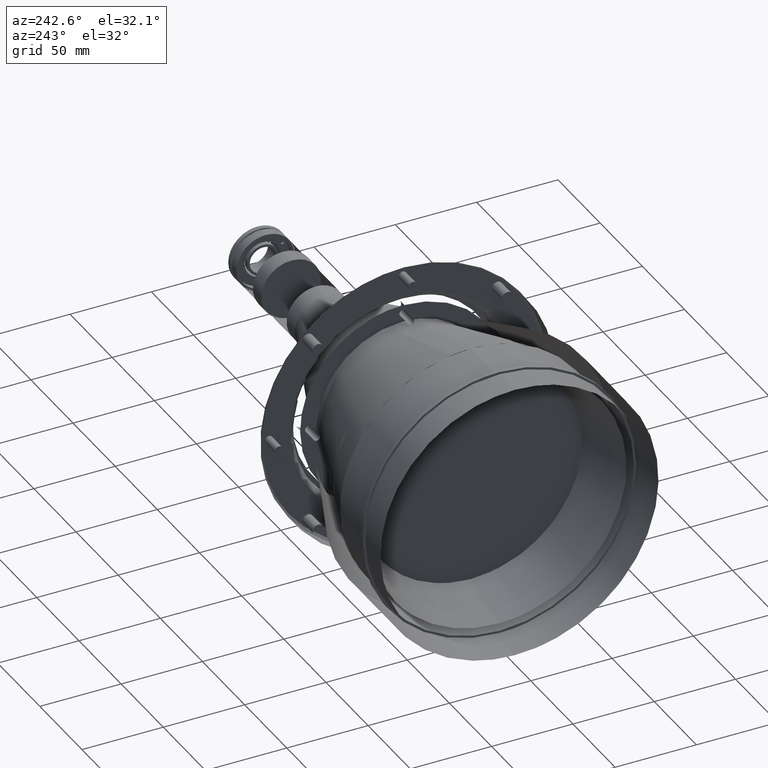
[diagram: clean part render]
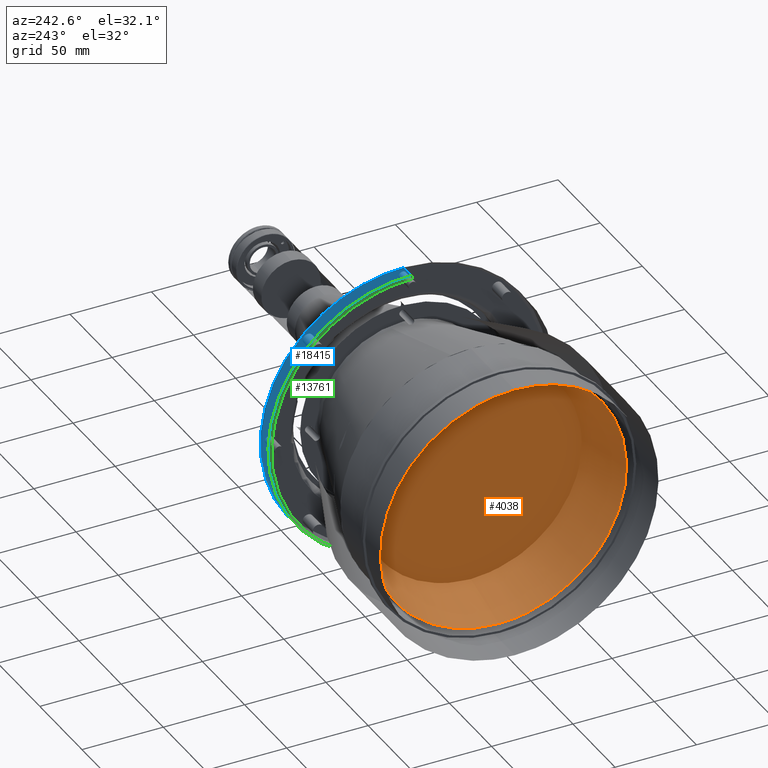
[diagram: same view with three faces highlighted in distinct colors, each labeled with its STEP entity id]
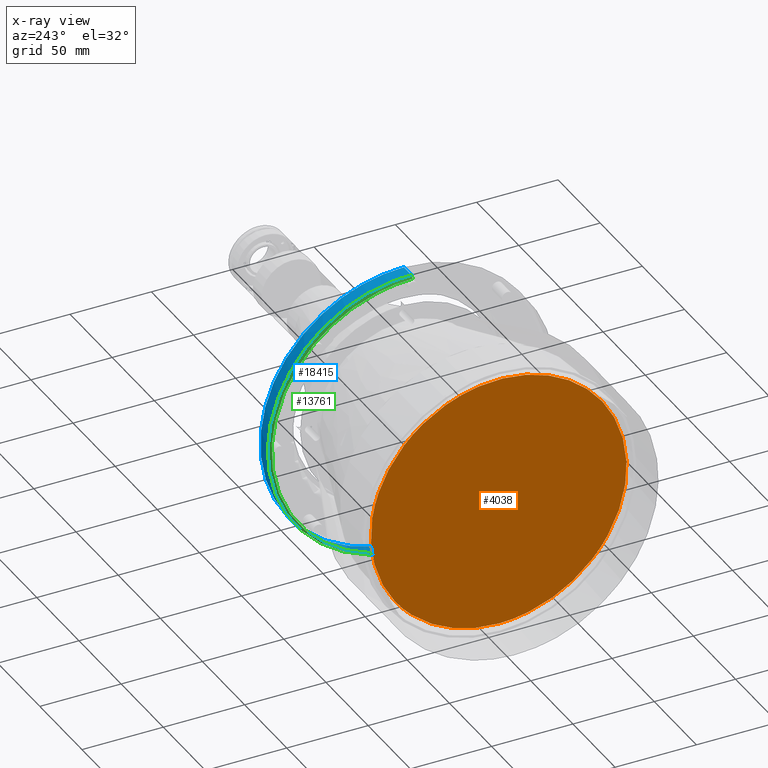
[diagram: x-ray of the same camera — body ghosted, the three highlighted faces saturated]
A machine part, auxiliary view with three faces highlighted in distinct colors.
The next image is the same camera in x-ray (body ghosted, the three faces saturated) — at least one of them is partly hidden behind the body in this view.
Their STEP definitions:

[orange] entity #4038 — the highlighted planar face has unit normal (1, -0, 0).
#194 = CARTESIAN_POINT ( 'NONE',  ( 38.05671031457399067, 6.376084525311458862, 10.19077467003822690 ) ) ;
#271 = B_SPLINE_CURVE_WITH_KNOTS ( 'NONE', 3,
 ( #10442, #1883, #2157, #13255, #3456, #17523, #9045, #4864, #14741, #14927, #10533, #2685, #1187, #6448, #16395, #12651, #14052, #17026, #15630, #12742, #15537, #5388, #6973, #14144, #2874, #12558, #6880, #13868, #4184, #5484, #15350, #1092, #8367, #9852, #12121, #1281, #8549, #14238, #13958, #2780, #7067, #8456, #5043, #11163, #9665, #9946, #17799, #2246, #3647, #11256, #10718, #4277, #18240, #9321, #2593, #16840, #6785, #16933, #18328, #5575, #9759, #15439, #15015, #7926, #1375, #12464, #18148, #18417, #11069, #16748, #5670, #11351, #3997, #8268, #4088 ),
 .UNSPECIFIED., .F., .F.,
 ( 4, 2, 2, 1, 2, 2, 1, 2, 2, 1, 2, 2, 1, 2, 2, 1, 2, 2, 1, 2, 2, 1, 2, 2, 1, 2, 2, 1, 2, 2, 2, 2, 1, 2, 2, 1, 2, 2, 1, 2, 2, 1, 2, 4 ),
 ( 0.000000000000000000, 0.02976128289108567054, 0.03720160361385711073, 0.04464192433662855786, 0.05952256578217144517, 0.06696288650494289230, 0.07440320722771430473, 0.08928384867325703245, 0.09672416939602843100, 0.1041644901187998296, 0.1190451315643426405, 0.1264854522871140807, 0.1339257730098855070, 0.1488064144554284707, 0.1636870559009714343, 0.1785676973465143980, 0.1860080180692859353, 0.1934483387920574171, 0.2083289802376005195, 0.2157693009603720291, 0.2232096216831435664, 0.2380902631286866411, 0.2455305838514581507, 0.2529709045742296603, 0.2678515460197726794, 0.2752918667425441335, 0.2827321874653155875, 0.2976128289108585512, 0.3124934703564014593, 0.3273741118019444230, 0.3422547532474873311, 0.3496950739702588407, 0.3571353946930302947, 0.3720160361385733139, 0.3794563568613448235, 0.3868966775841162775, 0.4017773190296592412, 0.4092176397524307507, 0.4166579604752022048, 0.4315386019207451129, 0.4389789226435166225, 0.4464192433662880766, 0.4612998848118310402, 0.4761805262573740039 ),
 .UNSPECIFIED. ) ;
#464 = CARTESIAN_POINT ( 'NONE',  ( 38.05671031457398357, -66.87561608679088465, -26.78701782049433433 ) ) ;
#549 = CARTESIAN_POINT ( 'NONE',  ( 38.05671031457399778, -44.70217141677154160, -3.527501844112061136 ) ) ;
#645 = CARTESIAN_POINT ( 'NONE',  ( 38.05671031457398357, -53.84246253192723941, -125.5366221208920336 ) ) ;
#740 = CARTESIAN_POINT ( 'NONE',  ( 38.05671031457397646, -71.72742678579534470, -100.4569420329792422 ) ) ;
#829 = CARTESIAN_POINT ( 'NONE',  ( 38.05671031457399067, -46.89464270951236813, -5.098048380680411995 ) ) ;
#1047 = CARTESIAN_POINT ( 'NONE',  ( 38.05671031457399778, 0.000000000000000000, -146.8487528718239901 ) ) ;
#1092 = CARTESIAN_POINT ( 'NONE',  ( 38.05671031457401909, 75.68372241338141748, -89.77822345478968202 ) ) ;
#1187 = CARTESIAN_POINT ( 'NONE',  ( 38.05671031457400488, 39.75026936329564364, -136.1055009067310380 ) ) ;
#1200 = CARTESIAN_POINT ( 'NONE',  ( 38.05671031457399778, 0.000000000000000000, -146.8487528718239901 ) ) ;
#1281 = CARTESIAN_POINT ( 'NONE',  ( 38.05671031457401909, 77.92636991577541039, -78.97406470964327241 ) ) ;
#1375 = CARTESIAN_POINT ( 'NONE',  ( 38.05671031457401909, 41.42006094552719020, -1.380688524144313867 ) ) ;
#1749 = EDGE_CURVE ( 'NONE', #13409, #3978, #9203, .T. ) ;
#1883 = CARTESIAN_POINT ( 'NONE',  ( 38.05671031457400488, 4.916527840896818269, -146.8487528720000341 ) ) ;
#1963 = CARTESIAN_POINT ( 'NONE',  ( 38.05671031457399778, -37.53446332763071780, -137.4043306474347617 ) ) ;
#2053 = CARTESIAN_POINT ( 'NONE',  ( 38.05671031457399778, -36.66643379590394147, 1.421971415113263193 ) ) ;
#2147 = CARTESIAN_POINT ( 'NONE',  ( 38.05671031457397646, -77.07840901102601094, -83.80246185347523635 ) ) ;
#2157 = CARTESIAN_POINT ( 'NONE',  ( 38.05671031457401199, 9.788222218176917622, -146.3920013364085548 ) ) ;
#2236 = CARTESIAN_POINT ( 'NONE',  ( 38.05671031457396936, -61.45554576600308394, -19.04915952185774941 ) ) ;
#2246 = CARTESIAN_POINT ( 'NONE',  ( 38.05671031457401909, 73.58253753424232002, -40.40882538043845074 ) ) ;
#2549 = FACE_OUTER_BOUND ( 'NONE', #3040, .T. ) ;
#2593 = CARTESIAN_POINT ( 'NONE',  ( 38.05671031457401909, 62.97722328985243223, -21.13338555179635136 ) ) ;
#2685 = CARTESIAN_POINT ( 'NONE',  ( 38.05671031457398357, 36.55432843123357145, -137.9113011771030415 ) ) ;
#2780 = CARTESIAN_POINT ( 'NONE',  ( 38.05671031457401199, 78.63474629083620471, -67.97904042699587990 ) ) ;
#2874 = CARTESIAN_POINT ( 'NONE',  ( 38.05671031457401199, 66.08203489139548026, -110.8981845612031378 ) ) ;
#3040 = EDGE_LOOP ( 'NONE', ( #3644, #14266 ) ) ;
#3183 = CARTESIAN_POINT ( 'NONE',  ( 38.05671031457399778, -15.09690114236384240, 8.951187844582982223 ) ) ;
#3358 = CARTESIAN_POINT ( 'NONE',  ( 38.05671031457398357, -65.92607116230033171, -111.0898646095812694 ) ) ;
#3448 = CARTESIAN_POINT ( 'NONE',  ( 38.05671031457399067, -76.26405228424427207, -49.04826227293060725 ) ) ;
#3456 = CARTESIAN_POINT ( 'NONE',  ( 38.05671031457401199, 17.02378784041215454, -144.9935811832500860 ) ) ;
#3533 = EDGE_CURVE ( 'NONE', #3978, #13409, #271, .T. ) ;
#3541 = CARTESIAN_POINT ( 'NONE',  ( 38.05671031457398357, -78.51959019937328321, -73.12674455888888758 ) ) ;
#3635 = CARTESIAN_POINT ( 'NONE',  ( 38.05671031457399067, -56.03466016865046839, -13.05146247734951537 ) ) ;
#3644 = ORIENTED_EDGE ( 'NONE', *, *, #3533, .T. ) ;
#3647 = CARTESIAN_POINT ( 'NONE',  ( 38.05671031457401909, 71.70110261549422148, -35.86603427780241304 ) ) ;
#3734 = CARTESIAN_POINT ( 'NONE',  ( 38.05671031457398357, -71.87527263645489484, -36.32064329710928519 ) ) ;
#3978 = VERTEX_POINT ( 'NONE', #1047 ) ;
#3997 = CARTESIAN_POINT ( 'NONE',  ( 38.05671031457401909, 16.55780786059200693, 8.678278479446325022 ) ) ;
#4038 = ADVANCED_FACE ( 'NONE', ( #2549 ), #4044, .T. ) ;
#4044 = PLANE ( 'NONE',  #7802 ) ;
#4088 = CARTESIAN_POINT ( 'NONE',  ( 38.05671031457399778, 11.71905027885016004, 9.525284016133939602 ) ) ;
#4184 = CARTESIAN_POINT ( 'NONE',  ( 38.05671031457401199, 72.83510602422902025, -97.86317660481512348 ) ) ;
#4277 = CARTESIAN_POINT ( 'NONE',  ( 38.05671031457401199, 67.12897999313743469, -27.21399705340662933 ) ) ;
#4765 = CARTESIAN_POINT ( 'NONE',  ( 38.05671031457399067, -76.87633949925070453, -51.67513521243261465 ) ) ;
#4854 = CARTESIAN_POINT ( 'NONE',  ( 38.05671031457399778, -40.17326951209265928, -0.5810521141859347205 ) ) ;
#4864 = CARTESIAN_POINT ( 'NONE',  ( 38.05671031457400488, 26.43663849767017382, -142.3121472042883511 ) ) ;
#4943 = CARTESIAN_POINT ( 'NONE',  ( 38.05671031457398357, -75.24601029676011876, -45.13831364069653773 ) ) ;
#5032 = CARTESIAN_POINT ( 'NONE',  ( 38.05671031457399067, -29.29185173212004756, 4.754860463382906133 ) ) ;
#5043 = CARTESIAN_POINT ( 'NONE',  ( 38.05671031457401909, 77.83011824985213423, -56.99601623189805366 ) ) ;
#5127 = CARTESIAN_POINT ( 'NONE',  ( 38.05671031457397646, -73.29298297572074716, -96.71802628340445551 ) ) ;
#5388 = CARTESIAN_POINT ( 'NONE',  ( 38.05671031457400488, 59.48905360007999832, -119.7371423925940377 ) ) ;
#5484 = CARTESIAN_POINT ( 'NONE',  ( 38.05671031457401199, 73.28957110382296491, -96.72136178031674092 ) ) ;
#5575 = CARTESIAN_POINT ( 'NONE',  ( 38.05671031457401909, 53.12469848195424049, -10.24622313552383268 ) ) ;
#5670 = CARTESIAN_POINT ( 'NONE',  ( 38.05671031457401909, 24.83016480877881804, 6.450125369217453830 ) ) ;
#5897 = CARTESIAN_POINT ( 'NONE',  ( 38.05671031457399778, 2.338099930417981476, 10.37945372494602481 ) ) ;
#5988 = CARTESIAN_POINT ( 'NONE',  ( 38.05671031457399778, 11.71905027885016004, 9.525284016133939602 ) ) ;
#6076 = CARTESIAN_POINT ( 'NONE',  ( 38.05671031457399778, -13.76687304012811097, 9.199642144594054827 ) ) ;
#6163 = CARTESIAN_POINT ( 'NONE',  ( 38.05671031457399778, -30.54388108301824900, 4.239738514417793702 ) ) ;
#6252 = CARTESIAN_POINT ( 'NONE',  ( 38.05671031457400488, -33.92057187863734669, -139.2072266835781420 ) ) ;
#6347 = CARTESIAN_POINT ( 'NONE',  ( 38.05671031457399067, -22.61435096974433279, -143.6118960994778320 ) ) ;
#6439 = CARTESIAN_POINT ( 'NONE',  ( 38.05671031457398357, -70.00832826489842375, -104.1151409645158594 ) ) ;
#6448 = CARTESIAN_POINT ( 'NONE',  ( 38.05671031457401909, 42.86517839783904549, -134.1478589493891036 ) ) ;
#6526 = CARTESIAN_POINT ( 'NONE',  ( 38.05671031457398357, -55.77844643650935552, -123.6538344810680172 ) ) ;
#6785 = CARTESIAN_POINT ( 'NONE',  ( 38.05671031457401909, 58.33466498240333920, -15.44873522400510346 ) ) ;
#6833 = DIRECTION ( 'NONE',  ( 1.000000000000000000, -2.035262795730819678E-16, 2.786056550776199888E-32 ) ) ;
#6880 = CARTESIAN_POINT ( 'NONE',  ( 38.05671031457401909, 70.35633602721718205, -103.4739242110976107 ) ) ;
#6973 = CARTESIAN_POINT ( 'NONE',  ( 38.05671031457400488, 61.80388307873852938, -116.8894908222988960 ) ) ;
#7067 = CARTESIAN_POINT ( 'NONE',  ( 38.05671031457401909, 78.56639179297700082, -64.29854869995493516 ) ) ;
#7292 = CARTESIAN_POINT ( 'NONE',  ( 38.05671031457399778, 9.054373412062425075, 9.926819279266585028 ) ) ;
#7553 = CARTESIAN_POINT ( 'NONE',  ( 38.05671031457399778, -43.58204880972693473, -2.767818743318413155 ) ) ;
#7638 = CARTESIAN_POINT ( 'NONE',  ( 38.05671031457399067, -33.01251345188338604, 3.149380294662648350 ) ) ;
#7732 = CARTESIAN_POINT ( 'NONE',  ( 38.05671031457399778, -58.79934955808261066, -16.00684351903584712 ) ) ;
#7802 = AXIS2_PLACEMENT_3D ( 'NONE', #9714, #6833, #10926 ) ;
#7829 = CARTESIAN_POINT ( 'NONE',  ( 38.05671031457398357, -78.63556903991303670, -67.72805215109974597 ) ) ;
#7917 = CARTESIAN_POINT ( 'NONE',  ( 38.05671031457399067, -56.97491616675443282, -14.02271015798575071 ) ) ;
#7926 = CARTESIAN_POINT ( 'NONE',  ( 38.05671031457399778, 43.48549900229272680, -2.706024210825458187 ) ) ;
#8268 = CARTESIAN_POINT ( 'NONE',  ( 38.05671031457400488, 14.14121759625210650, 9.159141166681505908 ) ) ;
#8367 = CARTESIAN_POINT ( 'NONE',  ( 38.05671031457401909, 76.55153123091109535, -86.20629609394629256 ) ) ;
#8456 = CARTESIAN_POINT ( 'NONE',  ( 38.05671031457401199, 78.32673313871595155, -60.63475725463543142 ) ) ;
#8549 = CARTESIAN_POINT ( 'NONE',  ( 38.05671031457401199, 78.37181173435568837, -75.33053543977335664 ) ) ;
#9034 = CARTESIAN_POINT ( 'NONE',  ( 38.05671031457399067, -47.70366460303858958, -130.7829342896594369 ) ) ;
#9045 = CARTESIAN_POINT ( 'NONE',  ( 38.05671031457401909, 22.95978730304792848, -143.4927133663095731 ) ) ;
#9126 = CARTESIAN_POINT ( 'NONE',  ( 38.05671031457398357, -78.19939772986202797, -77.15153695879597251 ) ) ;
#9203 = B_SPLINE_CURVE_WITH_KNOTS ( 'NONE', 3,
 ( #5988, #7292, #194, #5897, #10176, #10346, #10264, #15935, #6076, #3183, #14553, #11748, #16018, #5032, #6163, #7638, #2053, #4854, #7553, #549, #829, #9404, #14823, #3635, #7917, #7732, #2236, #9220, #464, #16293, #13244, #16386, #3734, #11833, #17514, #4943, #3448, #4765, #15095, #10617, #13424, #17792, #7829, #14917, #3541, #9126, #17884, #2147, #13516, #10434, #15008, #5127, #13607, #740, #6439, #12112, #16111, #3358, #10709, #16200, #9313, #13335, #6526, #645, #12205, #9034, #10799, #16477, #14732, #1963, #6252, #11925, #17606, #10521, #6347, #12018, #17703, #18251, #11267, #16664, #9493, #1200 ),
 .UNSPECIFIED., .F., .F.,
 ( 4, 2, 2, 1, 2, 2, 1, 2, 2, 1, 2, 2, 1, 2, 2, 1, 2, 2, 2, 2, 1, 2, 2, 1, 2, 2, 1, 2, 2, 1, 2, 2, 2, 2, 1, 2, 2, 1, 2, 2, 1, 2, 2, 1, 2, 2, 1, 4 ),
 ( 0.4761805262573740039, 0.4925498848118309847, 0.5007345640890594751, 0.5089192433662879100, 0.5252886019207448909, 0.5334732811979734368, 0.5416579604752018717, 0.5580273190296589636, 0.5662119983068873985, 0.5743966775841158334, 0.5907660361385729253, 0.5989507154158013602, 0.6071353946930299061, 0.6235047532474868870, 0.6316894325247153219, 0.6398741118019438678, 0.6562434703564008487, 0.6726128289108578295, 0.6807975081880862644, 0.6889821874653148104, 0.7053515460197717912, 0.7135362252970003372, 0.7217209045742287721, 0.7380902631286858639, 0.7462749424059142989, 0.7544596216831427338, 0.7708289802375998256, 0.7790136595148283716, 0.7871983387920569175, 0.8035676973465138984, 0.8117523766237424443, 0.8199370559009708792, 0.8363064144554279711, 0.8444910937326564060, 0.8526757730098849519, 0.8690451315643421548, 0.8772298108415707008, 0.8854144901187992467, 0.9017838486732564496, 0.9099685279504849955, 0.9181532072277136525, 0.9345225657821709664, 0.9427072450593996233, 0.9508919243366282803, 0.9672612828910855942, 0.9754459621683142512, 0.9836306414455426861, 1.000000000000000000 ),
 .UNSPECIFIED. ) ;
#9220 = CARTESIAN_POINT ( 'NONE',  ( 38.05671031457397646, -63.87038033670842907, -22.28982340841998422 ) ) ;
#9313 = CARTESIAN_POINT ( 'NONE',  ( 38.05671031457398357, -59.47543663570463224, -119.7212755075027104 ) ) ;
#9321 = CARTESIAN_POINT ( 'NONE',  ( 38.05671031457401199, 64.41378659677808116, -23.11914411118344148 ) ) ;
#9404 = CARTESIAN_POINT ( 'NONE',  ( 38.05671031457398357, -50.11734025242395774, -7.534409520270346938 ) ) ;
#9493 = CARTESIAN_POINT ( 'NONE',  ( 38.05671031457399067, -2.704462623055752246, -146.8487528719999773 ) ) ;
#9665 = CARTESIAN_POINT ( 'NONE',  ( 38.05671031457401909, 77.21897900880314580, -53.36678669948003773 ) ) ;
#9714 = CARTESIAN_POINT ( 'NONE',  ( 38.05671031457399778, 2.182586508514310088E-12, -75.37093559927269837 ) ) ;
#9759 = CARTESIAN_POINT ( 'NONE',  ( 38.05671031457401199, 50.39741777776100662, -7.785107709744822024 ) ) ;
#9852 = CARTESIAN_POINT ( 'NONE',  ( 38.05671031457402620, 77.07519263638933182, -83.80828482037074423 ) ) ;
#9946 = CARTESIAN_POINT ( 'NONE',  ( 38.05671031457400488, 76.46683334202626270, -49.76028517816337882 ) ) ;
#10176 = CARTESIAN_POINT ( 'NONE',  ( 38.05671031457399067, 0.9874648502324039345, 10.40780510535132386 ) ) ;
#10264 = CARTESIAN_POINT ( 'NONE',  ( 38.05671031457401199, -5.759467590481850863, 10.27320223436879587 ) ) ;
#10346 = CARTESIAN_POINT ( 'NONE',  ( 38.05671031457401199, -1.715349647835610947, 10.39542016807629743 ) ) ;
#10434 = CARTESIAN_POINT ( 'NONE',  ( 38.05671031457399067, -75.86306440271476959, -89.06023311745828153 ) ) ;
#10442 = CARTESIAN_POINT ( 'NONE',  ( 38.05671031457399778, 0.000000000000000000, -146.8487528718239901 ) ) ;
#10521 = CARTESIAN_POINT ( 'NONE',  ( 38.05671031457399067, -26.43049243160304940, -142.2860806473529749 ) ) ;
#10533 = CARTESIAN_POINT ( 'NONE',  ( 38.05671031457401199, 33.23683965289356479, -139.4893389170203193 ) ) ;
#10617 = CARTESIAN_POINT ( 'NONE',  ( 38.05671031457399067, -77.86580887978617227, -56.98634003731132225 ) ) ;
#10709 = CARTESIAN_POINT ( 'NONE',  ( 38.05671031457397646, -64.41414385769385831, -113.3301624749999093 ) ) ;
#10718 = CARTESIAN_POINT ( 'NONE',  ( 38.05671031457401199, 68.37326688644652961, -29.32305376294559451 ) ) ;
#10799 = CARTESIAN_POINT ( 'NONE',  ( 38.05671031457399778, -44.40267328799469482, -133.1246548485498238 ) ) ;
#10926 = DIRECTION ( 'NONE',  ( -2.035262795730819678E-16, -1.000000000000000000, 0.000000000000000000 ) ) ;
#11069 = CARTESIAN_POINT ( 'NONE',  ( 38.05671031457400488, 30.54944017321951222, 4.235207147251707660 ) ) ;
#11163 = CARTESIAN_POINT ( 'NONE',  ( 38.05671031457401909, 77.44194027180894579, -54.57575564398027979 ) ) ;
#11256 = CARTESIAN_POINT ( 'NONE',  ( 38.05671031457401199, 70.65938509027323278, -33.64920971172026753 ) ) ;
#11267 = CARTESIAN_POINT ( 'NONE',  ( 38.05671031457400488, -10.74591643880151537, -146.1233164662070578 ) ) ;
#11351 = CARTESIAN_POINT ( 'NONE',  ( 38.05671031457399778, 21.31348044963348443, 7.499143268266834639 ) ) ;
#11748 = CARTESIAN_POINT ( 'NONE',  ( 38.05671031457399067, -21.66967502543441881, 7.442504084687838528 ) ) ;
#11833 = CARTESIAN_POINT ( 'NONE',  ( 38.05671031457399067, -72.41303700199688365, -37.56130259237985314 ) ) ;
#11925 = CARTESIAN_POINT ( 'NONE',  ( 38.05671031457399067, -30.20825927470711747, -140.8265745785229512 ) ) ;
#12018 = CARTESIAN_POINT ( 'NONE',  ( 38.05671031457399778, -18.70712717697344019, -144.6388780566256855 ) ) ;
#12112 = CARTESIAN_POINT ( 'NONE',  ( 38.05671031457398357, -68.73972386227305265, -106.4886503602495083 ) ) ;
#12121 = CARTESIAN_POINT ( 'NONE',  ( 38.05671031457401199, 77.30966860694340426, -82.60049744451848142 ) ) ;
#12205 = CARTESIAN_POINT ( 'NONE',  ( 38.05671031457398357, -50.87231743202560352, -128.2803934304872087 ) ) ;
#12464 = CARTESIAN_POINT ( 'NONE',  ( 38.05671031457400488, 38.28126100364460171, 0.5314588159602521289 ) ) ;
#12558 = CARTESIAN_POINT ( 'NONE',  ( 38.05671031457400488, 68.61117981429146084, -106.7021960375514453 ) ) ;
#12651 = CARTESIAN_POINT ( 'NONE',  ( 38.05671031457401199, 45.90622551727862799, -132.0679096595923738 ) ) ;
#12742 = CARTESIAN_POINT ( 'NONE',  ( 38.05671031457401199, 55.25434336525439249, -124.1734842398027467 ) ) ;
#13244 = CARTESIAN_POINT ( 'NONE',  ( 38.05671031457398357, -70.14182039062619367, -32.66958729998061273 ) ) ;
#13255 = CARTESIAN_POINT ( 'NONE',  ( 38.05671031457399778, 15.82179836025610342, -145.2501224974296861 ) ) ;
#13335 = CARTESIAN_POINT ( 'NONE',  ( 38.05671031457398357, -56.72403530899107693, -122.6859856291268898 ) ) ;
#13409 = VERTEX_POINT ( 'NONE', #14323 ) ;
#13424 = CARTESIAN_POINT ( 'NONE',  ( 38.05671031457397646, -78.37466198838798448, -60.99250059355649256 ) ) ;
#13516 = CARTESIAN_POINT ( 'NONE',  ( 38.05671031457398357, -76.79918591385670368, -85.12599726308781101 ) ) ;
#13607 = CARTESIAN_POINT ( 'NONE',  ( 38.05671031457398357, -72.27013716560132650, -99.22046244757828504 ) ) ;
#13868 = CARTESIAN_POINT ( 'NONE',  ( 38.05671031457400488, 71.87393852127355842, -100.1237317340711002 ) ) ;
#13958 = CARTESIAN_POINT ( 'NONE',  ( 38.05671031457401199, 78.62897954294304270, -69.20954647417191552 ) ) ;
#14052 = CARTESIAN_POINT ( 'NONE',  ( 38.05671031457400488, 48.87388178031245189, -129.8996564832649767 ) ) ;
#14144 = CARTESIAN_POINT ( 'NONE',  ( 38.05671031457401909, 64.71307009950925249, -112.9468601309484228 ) ) ;
#14238 = CARTESIAN_POINT ( 'NONE',  ( 38.05671031457401199, 78.56036431755845229, -71.66136136741140206 ) ) ;
#14266 = ORIENTED_EDGE ( 'NONE', *, *, #1749, .T. ) ;
#14323 = CARTESIAN_POINT ( 'NONE',  ( 38.05671031457399778, 11.71905027885016004, 9.525284016133939602 ) ) ;
#14553 = CARTESIAN_POINT ( 'NONE',  ( 38.05671031457401199, -17.73806305709203102, 8.387588118326330999 ) ) ;
#14732 = CARTESIAN_POINT ( 'NONE',  ( 38.05671031457399067, -41.00072304421917124, -135.3261123994932120 ) ) ;
#14741 = CARTESIAN_POINT ( 'NONE',  ( 38.05671031457400488, 29.86363764349285788, -140.9668484117632374 ) ) ;
#14823 = CARTESIAN_POINT ( 'NONE',  ( 38.05671031457397646, -53.14200960673681351, -10.21239466407252650 ) ) ;
#14917 = CARTESIAN_POINT ( 'NONE',  ( 38.05671031457397646, -78.63248810312546766, -69.08181247480555953 ) ) ;
#14927 = CARTESIAN_POINT ( 'NONE',  ( 38.05671031457401199, 30.99816983482731203, -140.4907501813085560 ) ) ;
#15008 = CARTESIAN_POINT ( 'NONE',  ( 38.05671031457399067, -74.72756049022704872, -92.93427510245879830 ) ) ;
#15015 = CARTESIAN_POINT ( 'NONE',  ( 38.05671031457401199, 44.50540867232514586, -3.394471802162824847 ) ) ;
#15095 = CARTESIAN_POINT ( 'NONE',  ( 38.05671031457398357, -77.14971525489796988, -53.00086793887822267 ) ) ;
#15350 = CARTESIAN_POINT ( 'NONE',  ( 38.05671031457401909, 74.56896346791458541, -93.27488216707314450 ) ) ;
#15439 = CARTESIAN_POINT ( 'NONE',  ( 38.05671031457401199, 47.50609418717424148, -5.523340387956813480 ) ) ;
#15537 = CARTESIAN_POINT ( 'NONE',  ( 38.05671031457401909, 56.97481530180074571, -122.4208117905628228 ) ) ;
#15630 = CARTESIAN_POINT ( 'NONE',  ( 38.05671031457400488, 54.37299374544480202, -125.0305607123269880 ) ) ;
#15935 = CARTESIAN_POINT ( 'NONE',  ( 38.05671031457399778, -9.773274119760770873, 9.840062717276385484 ) ) ;
#16018 = CARTESIAN_POINT ( 'NONE',  ( 38.05671031457399067, -25.51089428252712921, 6.198366718288873756 ) ) ;
#16111 = CARTESIAN_POINT ( 'NONE',  ( 38.05671031457396936, -66.65300917529383185, -109.9509796159139938 ) ) ;
#16200 = CARTESIAN_POINT ( 'NONE',  ( 38.05671031457396936, -62.06566783915013730, -116.6246531603773207 ) ) ;
#16293 = CARTESIAN_POINT ( 'NONE',  ( 38.05671031457398357, -68.25538927401493083, -29.10049561246784933 ) ) ;
#16386 = CARTESIAN_POINT ( 'NONE',  ( 38.05671031457398357, -70.74003498867347162, -33.87567739107473841 ) ) ;
#16395 = CARTESIAN_POINT ( 'NONE',  ( 38.05671031457401199, 43.89143796184481516, -133.4690293256202835 ) ) ;
#16477 = CARTESIAN_POINT ( 'NONE',  ( 38.05671031457399778, -43.27875580363257058, -133.8794508537993693 ) ) ;
#16664 = CARTESIAN_POINT ( 'NONE',  ( 38.05671031457399067, -6.740603970947468326, -146.6414853274877430 ) ) ;
#16748 = CARTESIAN_POINT ( 'NONE',  ( 38.05671031457401199, 28.27174404397040064, 5.154107734170961130 ) ) ;
#16840 = CARTESIAN_POINT ( 'NONE',  ( 38.05671031457400488, 60.75580465212952674, -18.20927278278969297 ) ) ;
#16933 = CARTESIAN_POINT ( 'NONE',  ( 38.05671031457401909, 55.78037795800833010, -12.79724780536855278 ) ) ;
#17026 = CARTESIAN_POINT ( 'NONE',  ( 38.05671031457401199, 51.67796283299556137, -127.5316822750814936 ) ) ;
#17514 = CARTESIAN_POINT ( 'NONE',  ( 38.05671031457399067, -73.92913481435289214, -41.31944733951924320 ) ) ;
#17523 = CARTESIAN_POINT ( 'NONE',  ( 38.05671031457401199, 19.40815803522637850, -144.4261805825746592 ) ) ;
#17606 = CARTESIAN_POINT ( 'NONE',  ( 38.05671031457399778, -28.95434622152831849, -141.3357962359415296 ) ) ;
#17703 = CARTESIAN_POINT ( 'NONE',  ( 38.05671031457399778, -14.73918183026097495, -145.4666376837888038 ) ) ;
#17792 = CARTESIAN_POINT ( 'NONE',  ( 38.05671031457397646, -78.57265432256028248, -65.02969383652002477 ) ) ;
#17799 = CARTESIAN_POINT ( 'NONE',  ( 38.05671031457401199, 75.24432894556233009, -45.01808588118771581 ) ) ;
#17884 = CARTESIAN_POINT ( 'NONE',  ( 38.05671031457399067, -77.56826341171228023, -81.14611983243881355 ) ) ;
#18148 = CARTESIAN_POINT ( 'NONE',  ( 38.05671031457400488, 35.02053249155930104, 2.216037586313304164 ) ) ;
#18240 = CARTESIAN_POINT ( 'NONE',  ( 38.05671031457401909, 65.11070796608011335, -24.13144388637077142 ) ) ;
#18251 = CARTESIAN_POINT ( 'NONE',  ( 38.05671031457399778, -13.40927388847358159, -145.7087813771824472 ) ) ;
#18328 = CARTESIAN_POINT ( 'NONE',  ( 38.05671031457401199, 54.90643164332893633, -11.93126633137448955 ) ) ;
#18417 = CARTESIAN_POINT ( 'NONE',  ( 38.05671031457400488, 31.67851826600555398, 3.748903976831996498 ) ) ;

[blue] entity #18415 — the highlighted cylindrical surface (partial cylindrical patch) has radius 88.25 mm, axis along (1, 0, 0).
#247 = VERTEX_POINT ( 'NONE', #12588 ) ;
#586 = CARTESIAN_POINT ( 'NONE',  ( 150.5389117160654848, 81.90058179655707704, -101.5050673972786797 ) ) ;
#766 = CARTESIAN_POINT ( 'NONE',  ( 146.0389117160000012, -1.080750800247256375E-14, -156.4731538719539117 ) ) ;
#774 = CARTESIAN_POINT ( 'NONE',  ( 150.5389117161412287, 49.51257566537736210, 5.015469254761802276 ) ) ;
#802 = CARTESIAN_POINT ( 'NONE',  ( 141.5389117051773553, 79.78129141425925752, -30.13986876032295115 ) ) ;
#892 = CARTESIAN_POINT ( 'NONE',  ( 141.5389117048508467, 88.04739365662601358, -60.28290608733605183 ) ) ;
#981 = CARTESIAN_POINT ( 'NONE',  ( 141.5389117129423084, 30.92584401795191695, -151.0421326014617307 ) ) ;
#1255 = VERTEX_POINT ( 'NONE', #9856 ) ;
#1322 = ORIENTED_EDGE ( 'NONE', *, *, #2497, .T. ) ;
#1367 = VERTEX_POINT ( 'NONE', #6226 ) ;
#1967 = FACE_OUTER_BOUND ( 'NONE', #8262, .T. ) ;
#2091 = CARTESIAN_POINT ( 'NONE',  ( 150.5389117161313948, 61.67972537562497592, -4.890677652365279293 ) ) ;
#2201 = ORIENTED_EDGE ( 'NONE', *, *, #10506, .F. ) ;
#2208 = CARTESIAN_POINT ( 'NONE',  ( 141.5389117054406825, 87.44932796703433553, -81.18487068890176772 ) ) ;
#2270 = CARTESIAN_POINT ( 'NONE',  ( 150.5389117161149102, 77.47320156279889147, -25.64036267494373789 ) ) ;
#2316 = B_SPLINE_CURVE_WITH_KNOTS ( 'NONE', 3,
 ( #15702, #17006, #4258, #9646, #5649, #18308 ),
 .UNSPECIFIED., .F., .F.,
 ( 4, 2, 4 ),
 ( 0.9050760580261500987, 0.9525380290130750494, 1.000000000000000000 ),
 .UNSPECIFIED. ) ;
#2355 = DIRECTION ( 'NONE',  ( 1.000000000000000000, 0.000000000000000000, 0.000000000000000000 ) ) ;
#2364 = CARTESIAN_POINT ( 'NONE',  ( 150.5389117147934996, 25.92890339396096522, 16.13177763185249347 ) ) ;
#2481 = CARTESIAN_POINT ( 'NONE',  ( 141.5389117095058680, 61.67972536991604215, -131.5556300886762813 ) ) ;
#2497 = EDGE_CURVE ( 'NONE', #11236, #3548, #9614, .T. ) ;
#3186 = DIRECTION ( 'NONE',  ( 1.000000000000000000, 0.000000000000000000, 0.000000000000000000 ) ) ;
#3481 = CARTESIAN_POINT ( 'NONE',  ( 141.5389117151979974, 7.687487624479819159E-09, -156.4731538718159811 ) ) ;
#3484 = CARTESIAN_POINT ( 'NONE',  ( 150.5389117161248009, 68.72539266423999038, -12.61549729784838902 ) ) ;
#3548 = VERTEX_POINT ( 'NONE', #12943 ) ;
#3579 = CARTESIAN_POINT ( 'NONE',  ( 150.5389117161444972, 45.07930855056285679, 7.824508860833859991 ) ) ;
#3883 = CARTESIAN_POINT ( 'NONE',  ( 141.5389117109671417, 49.51257566164584745, -141.4617769955900712 ) ) ;
#3977 = CARTESIAN_POINT ( 'NONE',  ( 141.5389117059458783, 85.30748987477079481, -91.41848176552103666 ) ) ;
#4071 = CARTESIAN_POINT ( 'NONE',  ( 141.5389117114647206, 45.07930854754133776, -144.2708166016807638 ) ) ;
#4258 = CARTESIAN_POINT ( 'NONE',  ( 150.5389117161632271, 17.44745453667067636, 18.39605669978287494 ) ) ;
#4570 = DIRECTION ( 'NONE',  ( 1.000000000000000000, 0.000000000000000000, 0.000000000000000000 ) ) ;
#4889 = CARTESIAN_POINT ( 'NONE',  ( 150.5389117160819978, 88.04739366736008321, -76.16340165810518670 ) ) ;
#4973 = CARTESIAN_POINT ( 'NONE',  ( 150.5389117160754324, 86.49420713334953348, -86.50273808205760417 ) ) ;
#5033 = B_SPLINE_CURVE_WITH_KNOTS ( 'NONE', 3,
 ( #14767, #6650, #13460, #7949, #13732, #13638, #6559, #7674, #12144, #16234, #6285, #13367, #13549, #17644, #586, #12241, #4973, #4889, #9346, #14857, #10833, #11961, #10557, #17739, #2270, #12330, #3484, #2091, #9436, #774, #3579, #15126, #7766, #2364 ),
 .UNSPECIFIED., .F., .F.,
 ( 4, 2, 2, 2, 2, 2, 2, 2, 2, 2, 2, 2, 2, 2, 2, 2, 4 ),
 ( 0.000000000000000000, 0.05656725362663441586, 0.1131345072532688317, 0.1697017608799033239, 0.2262690145065377745, 0.2828362681331722528, 0.3394035217598066478, 0.3959707753864409319, 0.4525380290130752714, 0.5091052826397095554, 0.5656725362663439505, 0.6222397898929782345, 0.6788070435196125185, 0.7353742971462469136, 0.7919415507728813086, 0.8485088043995158147, 0.9050760580261500987 ),
 .UNSPECIFIED. ) ;
#5099 = CARTESIAN_POINT ( 'NONE',  ( 141.5389117153999905, -6.833325095051740339E-09, 20.02684612776329942 ) ) ;
#5187 = CARTESIAN_POINT ( 'NONE',  ( 141.5389117124523182, 35.78586559946965195, -149.0610341586020695 ) ) ;
#5369 = CARTESIAN_POINT ( 'NONE',  ( 141.5389117119222533, 25.80886962188913714, 16.33033993235271808 ) ) ;
#5649 = CARTESIAN_POINT ( 'NONE',  ( 150.5389117161714410, 4.386206776719716594, 20.02684612799992436 ) ) ;
#6226 = CARTESIAN_POINT ( 'NONE',  ( 141.5389117153999905, -6.833325095051740339E-09, 20.02684612776329942 ) ) ;
#6285 = CARTESIAN_POINT ( 'NONE',  ( 150.5389117160458454, 65.20009996877480773, -127.9252311438942371 ) ) ;
#6498 = CARTESIAN_POINT ( 'NONE',  ( 141.5389117066464735, 65.20009995916475987, -8.521076603661857263 ) ) ;
#6559 = CARTESIAN_POINT ( 'NONE',  ( 150.5389117160260639, 40.34954505844608974, -146.8825797540455085 ) ) ;
#6587 = CARTESIAN_POINT ( 'NONE',  ( 141.5389117052370409, 88.06437945742531781, -75.97274324609186635 ) ) ;
#6650 = CARTESIAN_POINT ( 'NONE',  ( 150.5389117160030139, 5.227673144024329588, -156.4731538720871811 ) ) ;
#6859 = CARTESIAN_POINT ( 'NONE',  ( 141.5389117062473758, 83.78073882310002318, -96.43979554198226367 ) ) ;
#7505 = EDGE_CURVE ( 'NONE', #11990, #247, #2316, .T. ) ;
#7674 = CARTESIAN_POINT ( 'NONE',  ( 150.5389117160326862, 49.35388368568300876, -141.5688097192067687 ) ) ;
#7764 = CARTESIAN_POINT ( 'NONE',  ( 141.5389117142020723, 17.44745454003465213, -154.8423644412832516 ) ) ;
#7766 = CARTESIAN_POINT ( 'NONE',  ( 150.5389117161543311, 30.92584401874985645, 14.59582486024446801 ) ) ;
#7886 = CARTESIAN_POINT ( 'NONE',  ( 141.5389117099876728, 57.81285295678241454, -135.1041309770234307 ) ) ;
#7949 = CARTESIAN_POINT ( 'NONE',  ( 150.5389117160129047, 20.74594316676344263, -154.1591586001560472 ) ) ;
#8070 = CARTESIAN_POINT ( 'NONE',  ( 141.5389117047911327, 86.49420712259558286, -49.94356966398696329 ) ) ;
#8106 = VECTOR ( 'NONE', #2355, 1000.000000000000000 ) ;
#8164 = CARTESIAN_POINT ( 'NONE',  ( 141.5389117073132468, 77.47320155443422607, -110.8059450671799055 ) ) ;
#8251 = CARTESIAN_POINT ( 'NONE',  ( 141.5389117070718328, 61.54245360867594883, -4.757277460107963485 ) ) ;
#8262 = EDGE_LOOP ( 'NONE', ( #17765, #1322, #16004, #13194, #2201, #8566 ) ) ;
#8566 = ORIENTED_EDGE ( 'NONE', *, *, #11510, .F. ) ;
#9049 = B_SPLINE_CURVE_WITH_KNOTS ( 'NONE', 3,
 ( #3481, #16323, #9157, #7764, #10831, #13457 ),
 .UNSPECIFIED., .F., .F.,
 ( 4, 2, 4 ),
 ( 0.000000000000000000, 0.04746197097632903067, 0.09492394195265806134 ),
 .UNSPECIFIED. ) ;
#9129 = CARTESIAN_POINT ( 'NONE',  ( 146.0389117160000012, 0.000000000000000000, -68.22315387197700431 ) ) ;
#9157 = CARTESIAN_POINT ( 'NONE',  ( 141.5389117149414915, 8.772377464137454339, -156.1455440994946855 ) ) ;
#9346 = CARTESIAN_POINT ( 'NONE',  ( 150.5389117160852379, 88.36341479458791071, -70.92463353316175301 ) ) ;
#9374 = CARTESIAN_POINT ( 'NONE',  ( 141.5389117085812529, 68.72539265736308778, -123.8308104435318882 ) ) ;
#9436 = CARTESIAN_POINT ( 'NONE',  ( 150.5389117161346348, 57.81285296185767919, -1.342176763902226400 ) ) ;
#9557 = CARTESIAN_POINT ( 'NONE',  ( 141.5389117104847116, 35.61075191325112144, 12.69202031443825618 ) ) ;
#9614 = LINE ( 'NONE', #766, #8106 ) ;
#9646 = CARTESIAN_POINT ( 'NONE',  ( 150.5389117161687125, 8.772377457313050186, 19.69923635730699374 ) ) ;
#9752 = B_SPLINE_CURVE_WITH_KNOTS ( 'NONE', 3,
 ( #12541, #981, #5187, #4071, #3883, #7886, #2481, #9374, #15066, #8164, #16818, #6859, #3977, #2208, #6587, #13579, #892, #8070, #12268, #16630, #802, #13665, #16449, #6498, #8251, #13938, #12170, #18037, #9557, #5369, #10861, #17853, #16543, #5099 ),
 .UNSPECIFIED., .F., .F.,
 ( 4, 2, 2, 2, 2, 2, 2, 2, 2, 2, 2, 2, 2, 2, 2, 2, 4 ),
 ( 0.09492394195265806134, 0.1514911955806169663, 0.2080584492085758574, 0.2646257028365347486, 0.3211929564644936397, 0.3777602100924524198, 0.4343274637204112554, 0.4908947173483700355, 0.5474619709763287601, 0.6040292246042877622, 0.6605964782322465423, 0.7171637318602055444, 0.7737309854881644355, 0.8302982391161233267, 0.8868654927440821067, 0.9434327463720411089, 1.000000000000000000 ),
 .UNSPECIFIED. ) ;
#9856 = CARTESIAN_POINT ( 'NONE',  ( 141.5389117142954092, 25.92890339388637244, -152.5780853732046012 ) ) ;
#9959 = CARTESIAN_POINT ( 'NONE',  ( 146.0389117160000012, 0.000000000000000000, 20.02684612799990305 ) ) ;
#10506 = EDGE_CURVE ( 'NONE', #1367, #247, #11730, .T. ) ;
#10557 = CARTESIAN_POINT ( 'NONE',  ( 150.5389117161050478, 83.78073883259961008, -40.00651220107760508 ) ) ;
#10831 = CARTESIAN_POINT ( 'NONE',  ( 141.5389117138148549, 21.73628954584688699, -153.8668052788028149 ) ) ;
#10833 = CARTESIAN_POINT ( 'NONE',  ( 150.5389117160951855, 87.44932797730096752, -55.26143705518754956 ) ) ;
#10861 = CARTESIAN_POINT ( 'NONE',  ( 141.5389117126924816, 20.74594315874040262, 17.71285085397720138 ) ) ;
#11236 = VERTEX_POINT ( 'NONE', #15018 ) ;
#11510 = EDGE_CURVE ( 'NONE', #1255, #1367, #9752, .T. ) ;
#11589 = CARTESIAN_POINT ( 'NONE',  ( 150.5389117147934996, 25.92890339396096522, 16.13177763185249347 ) ) ;
#11730 = LINE ( 'NONE', #9959, #15102 ) ;
#11751 = CYLINDRICAL_SURFACE ( 'NONE', #16312, 88.24999999997690736 ) ;
#11837 = DIRECTION ( 'NONE',  ( 0.000000000000000000, 0.000000000000000000, 1.000000000000000000 ) ) ;
#11961 = CARTESIAN_POINT ( 'NONE',  ( 150.5389117161016941, 85.30748988456683435, -45.02782597787891916 ) ) ;
#11990 = VERTEX_POINT ( 'NONE', #11589 ) ;
#12144 = CARTESIAN_POINT ( 'NONE',  ( 150.5389117160359547, 53.61927972217439731, -138.5108761895725422 ) ) ;
#12170 = CARTESIAN_POINT ( 'NONE',  ( 141.5389117085992439, 49.35388367684104338, 5.122501971810722310 ) ) ;
#12241 = CARTESIAN_POINT ( 'NONE',  ( 150.5389117160721639, 85.25706750633737840, -91.60313476889034234 ) ) ;
#12268 = CARTESIAN_POINT ( 'NONE',  ( 141.5389117048227376, 85.25706749562328923, -44.84317297743078257 ) ) ;
#12330 = CARTESIAN_POINT ( 'NONE',  ( 150.5389117161215324, 71.90407059519041866, -16.79168783840887968 ) ) ;
#12541 = CARTESIAN_POINT ( 'NONE',  ( 141.5389117142954092, 25.92890339388637244, -152.5780853732046012 ) ) ;
#12588 = CARTESIAN_POINT ( 'NONE',  ( 150.5389117162040122, 1.499994547986682208E-09, 20.02684612791339802 ) ) ;
#12943 = CARTESIAN_POINT ( 'NONE',  ( 150.5389117163820174, -1.687505377889890167E-09, -156.4731538718979778 ) ) ;
#13194 = ORIENTED_EDGE ( 'NONE', *, *, #7505, .T. ) ;
#13367 = CARTESIAN_POINT ( 'NONE',  ( 150.5389117160524108, 71.79254288235857473, -119.8101857017392291 ) ) ;
#13457 = CARTESIAN_POINT ( 'NONE',  ( 141.5389117142954092, 25.92890339388637244, -152.5780853732046012 ) ) ;
#13460 = CARTESIAN_POINT ( 'NONE',  ( 150.5389117160062824, 10.45525952145700366, -156.0074270355635235 ) ) ;
#13549 = CARTESIAN_POINT ( 'NONE',  ( 150.5389117160557078, 74.72723002397351877, -115.4590740965725217 ) ) ;
#13579 = CARTESIAN_POINT ( 'NONE',  ( 141.5389117049421088, 88.36341478391346982, -65.52167421195269981 ) ) ;
#13638 = CARTESIAN_POINT ( 'NONE',  ( 150.5389117160228238, 35.61075192160015490, -149.1383280613616478 ) ) ;
#13665 = CARTESIAN_POINT ( 'NONE',  ( 141.5389117056329269, 74.72723001382574637, -20.98723365074685177 ) ) ;
#13732 = CARTESIAN_POINT ( 'NONE',  ( 150.5389117160162016, 25.80886962999914402, -152.7766476788086152 ) ) ;
#13938 = CARTESIAN_POINT ( 'NONE',  ( 141.5389117080482322, 53.61927971314365493, 2.064568442084671940 ) ) ;
#14724 = EDGE_CURVE ( 'NONE', #11236, #1255, #9049, .T. ) ;
#14767 = CARTESIAN_POINT ( 'NONE',  ( 150.5389117163820174, -1.687505377889890167E-09, -156.4731538718979778 ) ) ;
#14857 = CARTESIAN_POINT ( 'NONE',  ( 150.5389117160918886, 88.06437946786606119, -60.47356449834654768 ) ) ;
#15018 = CARTESIAN_POINT ( 'NONE',  ( 141.5389117151979974, 7.687487624479819159E-09, -156.4731538718159811 ) ) ;
#15066 = CARTESIAN_POINT ( 'NONE',  ( 141.5389117081383574, 71.90407058777927318, -119.6546199031941313 ) ) ;
#15102 = VECTOR ( 'NONE', #4570, 1000.000000000000000 ) ;
#15126 = CARTESIAN_POINT ( 'NONE',  ( 150.5389117161511194, 35.78586560102433367, 12.61472641756066260 ) ) ;
#15702 = CARTESIAN_POINT ( 'NONE',  ( 150.5389117147934996, 25.92890339396096522, 16.13177763185249347 ) ) ;
#15706 = EDGE_CURVE ( 'NONE', #3548, #11990, #5033, .T. ) ;
#16004 = ORIENTED_EDGE ( 'NONE', *, *, #15706, .T. ) ;
#16234 = CARTESIAN_POINT ( 'NONE',  ( 150.5389117160425485, 61.54245361809073955, -131.6890302874598717 ) ) ;
#16312 = AXIS2_PLACEMENT_3D ( 'NONE', #9129, #3186, #11837 ) ;
#16323 = CARTESIAN_POINT ( 'NONE',  ( 141.5389117152936933, 4.386206785278949027, -156.4731538707567609 ) ) ;
#16449 = CARTESIAN_POINT ( 'NONE',  ( 141.5389117059270347, 71.79254287238204313, -16.63612204569254516 ) ) ;
#16543 = CARTESIAN_POINT ( 'NONE',  ( 141.5389117151765674, 5.227673136082064964, 20.02684612687424703 ) ) ;
#16630 = CARTESIAN_POINT ( 'NONE',  ( 141.5389117050158347, 81.90058178600126837, -34.94124034952199054 ) ) ;
#16818 = CARTESIAN_POINT ( 'NONE',  ( 141.5389117069310601, 79.86356215430714656, -106.1336076416974521 ) ) ;
#17006 = CARTESIAN_POINT ( 'NONE',  ( 150.5389117161604418, 21.73628954420838966, 17.42049753742056950 ) ) ;
#17644 = CARTESIAN_POINT ( 'NONE',  ( 150.5389117160622447, 79.78129142469664714, -106.3064389866808312 ) ) ;
#17739 = CARTESIAN_POINT ( 'NONE',  ( 150.5389117161116417, 79.86356216309103218, -30.31270010072419296 ) ) ;
#17765 = ORIENTED_EDGE ( 'NONE', *, *, #14724, .F. ) ;
#17853 = CARTESIAN_POINT ( 'NONE',  ( 141.5389117143196245, 10.45525951351783256, 19.56111929000614325 ) ) ;
#18037 = CARTESIAN_POINT ( 'NONE',  ( 141.5389117098175120, 40.34954504994500013, 10.43627200693169677 ) ) ;
#18308 = CARTESIAN_POINT ( 'NONE',  ( 150.5389117162040122, 1.499994547986682208E-09, 20.02684612791339802 ) ) ;
#18415 = ADVANCED_FACE ( 'NONE', ( #1967 ), #11751, .F. ) ;

[green] entity #13761 — the highlighted conical surface has half-angle 45 deg.
#59 = CARTESIAN_POINT ( 'NONE',  ( 140.0389117160000012, 48.51389577237038253, 3.876587023191570225 ) ) ;
#335 = CARTESIAN_POINT ( 'NONE',  ( 140.0389117160000296, 32.59567670727617639, 12.21120909700756485 ) ) ;
#523 = CARTESIAN_POINT ( 'NONE',  ( 140.0389117148954199, 25.48818592339123512, -151.1442919176398050 ) ) ;
#793 = DIRECTION ( 'NONE',  ( 1.000000000000000000, 1.226278523548439859E-10, 7.247912155246900158E-11 ) ) ;
#802 = CARTESIAN_POINT ( 'NONE',  ( 141.5389117051773553, 79.78129141425925752, -30.13986876032295115 ) ) ;
#892 = CARTESIAN_POINT ( 'NONE',  ( 141.5389117048508467, 88.04739365662601358, -60.28290608733605183 ) ) ;
#981 = CARTESIAN_POINT ( 'NONE',  ( 141.5389117129423084, 30.92584401795191695, -151.0421326014617307 ) ) ;
#992 = CARTESIAN_POINT ( 'NONE',  ( 140.0389117160000012, 76.03377492495502565, -110.0092605978654348 ) ) ;
#1131 = CARTESIAN_POINT ( 'NONE',  ( 140.5389117135549384, -1.209810957160179147E-08, 19.02684612441314727 ) ) ;
#1178 = CARTESIAN_POINT ( 'NONE',  ( 140.0389117160000012, 86.42506599814578294, -75.83385604064483232 ) ) ;
#1255 = VERTEX_POINT ( 'NONE', #9856 ) ;
#1271 = CARTESIAN_POINT ( 'NONE',  ( 140.0389117159999728, 60.54583326778529795, -130.4032746822992692 ) ) ;
#1366 = CARTESIAN_POINT ( 'NONE',  ( 140.0389117159999444, 52.70860618756845639, 0.8692227202283312470 ) ) ;
#1367 = VERTEX_POINT ( 'NONE', #6226 ) ;
#1485 = VECTOR ( 'NONE', #14227, 1000.000000000000114 ) ;
#1902 = ORIENTED_EDGE ( 'NONE', *, *, #2776, .F. ) ;
#2208 = CARTESIAN_POINT ( 'NONE',  ( 141.5389117054406825, 87.44932796703433553, -81.18487068890176772 ) ) ;
#2405 = CARTESIAN_POINT ( 'NONE',  ( 140.0389117160000012, 74.10349981660945673, -113.3440560992413424 ) ) ;
#2481 = CARTESIAN_POINT ( 'NONE',  ( 141.5389117095058680, 61.67972536991604215, -131.5556300886762813 ) ) ;
#2584 = CARTESIAN_POINT ( 'NONE',  ( 140.0389117160000012, 83.74632649589163691, -90.99881283680520028 ) ) ;
#2776 = EDGE_CURVE ( 'NONE', #11418, #7605, #12340, .T. ) ;
#3053 = CARTESIAN_POINT ( 'NONE',  ( 140.0389117160000012, 60.42189200489315937, -5.922620714909550443 ) ) ;
#3087 = EDGE_CURVE ( 'NONE', #1367, #7605, #8078, .T. ) ;
#3252 = ORIENTED_EDGE ( 'NONE', *, *, #3087, .T. ) ;
#3802 = CARTESIAN_POINT ( 'NONE',  ( 140.0389117160000012, 44.26000521413622124, -142.8772317812010897 ) ) ;
#3883 = CARTESIAN_POINT ( 'NONE',  ( 141.5389117109671417, 49.51257566164584745, -141.4617769955900712 ) ) ;
#3894 = CARTESIAN_POINT ( 'NONE',  ( 140.0389117160000296, 70.58476556445272365, -118.7203406896117741 ) ) ;
#3977 = CARTESIAN_POINT ( 'NONE',  ( 141.5389117059458783, 85.30748987477079481, -91.41848176552103666 ) ) ;
#4071 = CARTESIAN_POINT ( 'NONE',  ( 141.5389117114647206, 45.07930854754133776, -144.2708166016807638 ) ) ;
#4174 = CARTESIAN_POINT ( 'NONE',  ( 140.0389117160000296, 78.42533451024232249, -30.78750315397953230 ) ) ;
#4633 = CARTESIAN_POINT ( 'NONE',  ( 140.0389117160000296, 5.137515008380606929, 18.41278438436471632 ) ) ;
#5062 = CONICAL_SURFACE ( 'NONE', #17542, 86.89999999554649435, 0.7853981634156627090 ) ;
#5099 = CARTESIAN_POINT ( 'NONE',  ( 141.5389117153999905, -6.833325095051740339E-09, 20.02684612776329942 ) ) ;
#5187 = CARTESIAN_POINT ( 'NONE',  ( 141.5389117124523182, 35.78586559946965195, -149.0610341586020695 ) ) ;
#5288 = CARTESIAN_POINT ( 'NONE',  ( 140.0389117160000296, 82.25006315330742268, -95.91974899472134553 ) ) ;
#5369 = CARTESIAN_POINT ( 'NONE',  ( 141.5389117119222533, 25.80886962188913714, 16.33033993235271808 ) ) ;
#5379 = CARTESIAN_POINT ( 'NONE',  ( 140.0389117160000296, 67.47344282791144110, -122.8079416944890028 ) ) ;
#5477 = CARTESIAN_POINT ( 'NONE',  ( 140.0389117160000296, 86.55066062129219517, -60.41625869186557907 ) ) ;
#5566 = CARTESIAN_POINT ( 'NONE',  ( 140.0389117160000580, 82.98278177461088490, -42.80622325544159423 ) ) ;
#6037 = CARTESIAN_POINT ( 'NONE',  ( 140.0389117127079999, -1.299998014617990133E-08, 18.52684612285709775 ) ) ;
#6111 = CARTESIAN_POINT ( 'NONE',  ( 140.0389117127079999, -1.299998014617990133E-08, 18.52684612285709775 ) ) ;
#6226 = CARTESIAN_POINT ( 'NONE',  ( 141.5389117153999905, -6.833325095051740339E-09, 20.02684612776329942 ) ) ;
#6489 = FACE_OUTER_BOUND ( 'NONE', #13862, .T. ) ;
#6498 = CARTESIAN_POINT ( 'NONE',  ( 141.5389117066464735, 65.20009995916475987, -8.521076603661857263 ) ) ;
#6554 = CARTESIAN_POINT ( 'NONE',  ( 141.5389117153999905, -6.833325095051740339E-09, 20.02684612776329942 ) ) ;
#6587 = CARTESIAN_POINT ( 'NONE',  ( 141.5389117052370409, 88.06437945742531781, -75.97274324609186635 ) ) ;
#6687 = CARTESIAN_POINT ( 'NONE',  ( 140.0389117160000012, 47.51546943377784515, -140.8144285672091200 ) ) ;
#6777 = CARTESIAN_POINT ( 'NONE',  ( 140.0389117160000296, 84.38349652121034694, -88.51116210236332904 ) ) ;
#6859 = CARTESIAN_POINT ( 'NONE',  ( 141.5389117062473758, 83.78073882310002318, -96.43979554198226367 ) ) ;
#6869 = CARTESIAN_POINT ( 'NONE',  ( 140.0389117159999728, 54.78921872561553386, -135.5306758423099041 ) ) ;
#6965 = CARTESIAN_POINT ( 'NONE',  ( 140.0389117159999728, 48.58659104456072697, -140.1019152813033770 ) ) ;
#7058 = CARTESIAN_POINT ( 'NONE',  ( 140.0389117160000296, 64.00431353271626733, -9.608935214361991939 ) ) ;
#7252 = CARTESIAN_POINT ( 'NONE',  ( 140.0389117160000012, 25.37183965629622762, 14.89267345501317052 ) ) ;
#7605 = VERTEX_POINT ( 'NONE', #6111 ) ;
#7886 = CARTESIAN_POINT ( 'NONE',  ( 141.5389117099876728, 57.81285295678241454, -135.1041309770234307 ) ) ;
#8070 = CARTESIAN_POINT ( 'NONE',  ( 141.5389117047911327, 86.49420712259558286, -49.94356966398696329 ) ) ;
#8078 = B_SPLINE_CURVE_WITH_KNOTS ( 'NONE', 3,
 ( #6554, #13907, #1131, #12233 ),
 .UNSPECIFIED., .F., .F.,
 ( 4, 4 ),
 ( 0.000000000000000000, 1.000000000000000000 ),
 .UNSPECIFIED. ) ;
#8082 = CARTESIAN_POINT ( 'NONE',  ( 140.0389117160000296, 74.76322676264456391, -112.2422817091078855 ) ) ;
#8164 = CARTESIAN_POINT ( 'NONE',  ( 141.5389117073132468, 77.47320155443422607, -110.8059450671799055 ) ) ;
#8175 = CARTESIAN_POINT ( 'NONE',  ( 140.0389117160000012, 37.46006891184434551, -146.5105866550447615 ) ) ;
#8251 = CARTESIAN_POINT ( 'NONE',  ( 141.5389117070718328, 61.54245360867594883, -4.757277460107963485 ) ) ;
#8260 = CARTESIAN_POINT ( 'NONE',  ( 140.0389117160000296, 85.85103741611845862, -80.94238244548088801 ) ) ;
#8449 = CARTESIAN_POINT ( 'NONE',  ( 140.0389117159999728, 70.48284268306494482, -17.58377791908682752 ) ) ;
#9179 = CARTESIAN_POINT ( 'NONE',  ( 140.1889117121110075, -1.012764094809880010E-08, -68.22315387893921468 ) ) ;
#9374 = CARTESIAN_POINT ( 'NONE',  ( 141.5389117085812529, 68.72539265736308778, -123.8308104435318882 ) ) ;
#9475 = CARTESIAN_POINT ( 'NONE',  ( 140.0389117160000296, 65.82493462282194230, -124.7850527855257212 ) ) ;
#9557 = CARTESIAN_POINT ( 'NONE',  ( 141.5389117104847116, 35.61075191325112144, 12.69202031443825618 ) ) ;
#9658 = CARTESIAN_POINT ( 'NONE',  ( 140.0389117160000012, 78.40044284507200700, -105.4461311075731942 ) ) ;
#9752 = B_SPLINE_CURVE_WITH_KNOTS ( 'NONE', 3,
 ( #12541, #981, #5187, #4071, #3883, #7886, #2481, #9374, #15066, #8164, #16818, #6859, #3977, #2208, #6587, #13579, #892, #8070, #12268, #16630, #802, #13665, #16449, #6498, #8251, #13938, #12170, #18037, #9557, #5369, #10861, #17853, #16543, #5099 ),
 .UNSPECIFIED., .F., .F.,
 ( 4, 2, 2, 2, 2, 2, 2, 2, 2, 2, 2, 2, 2, 2, 2, 2, 4 ),
 ( 0.09492394195265806134, 0.1514911955806169663, 0.2080584492085758574, 0.2646257028365347486, 0.3211929564644936397, 0.3777602100924524198, 0.4343274637204112554, 0.4908947173483700355, 0.5474619709763287601, 0.6040292246042877622, 0.6605964782322465423, 0.7171637318602055444, 0.7737309854881644355, 0.8302982391161233267, 0.8868654927440821067, 0.9434327463720411089, 1.000000000000000000 ),
 .UNSPECIFIED. ) ;
#9856 = CARTESIAN_POINT ( 'NONE',  ( 141.5389117142954092, 25.92890339388637244, -152.5780853732046012 ) ) ;
#10132 = CARTESIAN_POINT ( 'NONE',  ( 140.0389117160000296, 10.25780900123206507, 17.95653741235210532 ) ) ;
#10158 = ORIENTED_EDGE ( 'NONE', *, *, #11510, .T. ) ;
#10311 = CARTESIAN_POINT ( 'NONE',  ( 140.0389117160000012, 12.80604989966562357, 17.61497599165405958 ) ) ;
#10861 = CARTESIAN_POINT ( 'NONE',  ( 141.5389117126924816, 20.74594315874040262, 17.71285085397720138 ) ) ;
#10862 = ORIENTED_EDGE ( 'NONE', *, *, #18144, .T. ) ;
#10960 = CARTESIAN_POINT ( 'NONE',  ( 140.0389117148954199, 25.48818592339123512, -151.1442919176398050 ) ) ;
#11155 = CARTESIAN_POINT ( 'NONE',  ( 140.0389117160000012, 27.94548111517781308, -150.3890068444020187 ) ) ;
#11248 = CARTESIAN_POINT ( 'NONE',  ( 140.0389117159999728, 80.50904640768209219, -35.50815730282410243 ) ) ;
#11418 = VERTEX_POINT ( 'NONE', #523 ) ;
#11439 = CARTESIAN_POINT ( 'NONE',  ( 140.0389117160000012, 20.39278153904121638, 16.25221717602837401 ) ) ;
#11510 = EDGE_CURVE ( 'NONE', #1255, #1367, #9752, .T. ) ;
#11530 = CARTESIAN_POINT ( 'NONE',  ( 140.0389117160000296, 2.571627669111822723, 18.52684612716787882 ) ) ;
#11622 = CARTESIAN_POINT ( 'NONE',  ( 140.0389117160000296, 68.95353237926350687, -15.52034116292977650 ) ) ;
#11707 = CARTESIAN_POINT ( 'NONE',  ( 140.1889117150004722, 25.53225727942096412, -151.2876699909727165 ) ) ;
#12170 = CARTESIAN_POINT ( 'NONE',  ( 141.5389117085992439, 49.35388367684104338, 5.122501971810722310 ) ) ;
#12233 = CARTESIAN_POINT ( 'NONE',  ( 140.0389117127079999, -1.299998014617990133E-08, 18.52684612285709775 ) ) ;
#12268 = CARTESIAN_POINT ( 'NONE',  ( 141.5389117048227376, 85.25706749562328923, -44.84317297743078257 ) ) ;
#12340 = B_SPLINE_CURVE_WITH_KNOTS ( 'NONE', 3,
 ( #10960, #11155, #16552, #13769, #8175, #16641, #3802, #6687, #6965, #15163, #13859, #6869, #18138, #1271, #15431, #9475, #5379, #3894, #16924, #2405, #8082, #992, #12368, #9658, #15251, #18048, #5288, #2584, #6777, #12456, #8260, #13950, #1178, #12550, #18232, #15529, #5477, #16830, #12643, #18320, #5566, #11248, #4174, #15809, #14136, #8449, #11622, #17114, #7058, #3053, #17303, #1366, #59, #12733, #15982, #13025, #335, #7252, #11439, #10311, #10132, #4633, #11530, #6037 ),
 .UNSPECIFIED., .F., .F.,
 ( 4, 2, 2, 2, 2, 2, 2, 2, 2, 2, 2, 2, 2, 2, 2, 2, 2, 2, 2, 2, 2, 2, 2, 2, 2, 2, 2, 2, 2, 2, 2, 4 ),
 ( 0.09492323478805129999, 0.1232068837009245160, 0.1514905326137977737, 0.1797741815266710175, 0.1939160059831076532, 0.2080578304395442890, 0.2363414793524177826, 0.2646251282652912762, 0.2929087771781649363, 0.3211924260910385964, 0.3353342505474753432, 0.3494760750039120345, 0.3777597239167853060, 0.4060433728296585776, 0.4343270217425317936, 0.4626106706554051207, 0.4767524951118418119, 0.4908943195682785032, 0.5474616173940253239, 0.5757452663068987064, 0.6040289152197722000, 0.6605962130455190762, 0.6888798619583924587, 0.7171635108712658413, 0.7454471597841392239, 0.7737308086970127174, 0.8302981065227597046, 0.8585817554356330872, 0.8868654043485064697, 0.9434327021742533459, 0.9717163510871267285, 1.000000000000000000 ),
 .UNSPECIFIED. ) ;
#12368 = CARTESIAN_POINT ( 'NONE',  ( 140.0389117160000296, 76.64498743554345594, -108.8772863398947806 ) ) ;
#12456 = CARTESIAN_POINT ( 'NONE',  ( 140.0389117160000012, 85.43666351509625656, -83.47901415625683796 ) ) ;
#12541 = CARTESIAN_POINT ( 'NONE',  ( 141.5389117142954092, 25.92890339388637244, -152.5780853732046012 ) ) ;
#12550 = CARTESIAN_POINT ( 'NONE',  ( 140.0389117160000012, 86.61256292775988186, -73.27173822604478914 ) ) ;
#12643 = CARTESIAN_POINT ( 'NONE',  ( 140.0389117160000012, 84.91091505131068118, -50.27033438316553315 ) ) ;
#12733 = CARTESIAN_POINT ( 'NONE',  ( 140.0389117159999728, 41.87780602579432099, 7.792728479385555573 ) ) ;
#13025 = CARTESIAN_POINT ( 'NONE',  ( 140.0389117159999728, 34.96685811330224425, 11.20913748672426102 ) ) ;
#13112 = LINE ( 'NONE', #11707, #1485 ) ;
#13579 = CARTESIAN_POINT ( 'NONE',  ( 141.5389117049421088, 88.36341478391346982, -65.52167421195269981 ) ) ;
#13665 = CARTESIAN_POINT ( 'NONE',  ( 141.5389117056329269, 74.72723001382574637, -20.98723365074685177 ) ) ;
#13761 = ADVANCED_FACE ( 'NONE', ( #6489 ), #5062, .F. ) ;
#13769 = CARTESIAN_POINT ( 'NONE',  ( 140.0389117159999728, 35.12628947544671121, -147.5850685140340204 ) ) ;
#13859 = CARTESIAN_POINT ( 'NONE',  ( 140.0389117159999728, 51.73028542212634306, -137.8737259320133717 ) ) ;
#13862 = EDGE_LOOP ( 'NONE', ( #1902, #10862, #10158, #3252 ) ) ;
#13907 = CARTESIAN_POINT ( 'NONE',  ( 141.0389117148030209, -1.118147789806739951E-08, 19.52684612575190926 ) ) ;
#13938 = CARTESIAN_POINT ( 'NONE',  ( 141.5389117080482322, 53.61927971314365493, 2.064568442084671940 ) ) ;
#13950 = CARTESIAN_POINT ( 'NONE',  ( 140.0389117160000012, 86.30271131777222138, -77.11438083728864967 ) ) ;
#14136 = CARTESIAN_POINT ( 'NONE',  ( 140.0389117160000296, 73.35768610609963503, -21.84626914998121094 ) ) ;
#14227 = DIRECTION ( 'NONE',  ( 0.7071067811971797346, 0.2077564128564873547, -0.6758973834110978407 ) ) ;
#14875 = DIRECTION ( 'NONE',  ( 3.325047691642708533E-11, 0.2938119366036490154, -0.9558632464475309565 ) ) ;
#15066 = CARTESIAN_POINT ( 'NONE',  ( 141.5389117081383574, 71.90407058777927318, -119.6546199031941313 ) ) ;
#15163 = CARTESIAN_POINT ( 'NONE',  ( 140.0389117159999728, 50.69368877281466723, -138.6317704804984885 ) ) ;
#15251 = CARTESIAN_POINT ( 'NONE',  ( 140.0389117160000012, 79.46851027632956743, -103.1075032902436561 ) ) ;
#15431 = CARTESIAN_POINT ( 'NONE',  ( 140.0389117159999728, 62.36335946562799393, -128.5802661274666434 ) ) ;
#15529 = CARTESIAN_POINT ( 'NONE',  ( 140.0389117159999728, 86.86142081642097423, -65.56922427374119877 ) ) ;
#15809 = CARTESIAN_POINT ( 'NONE',  ( 140.0389117160000012, 74.69880302177645603, -24.03867510918034256 ) ) ;
#15982 = CARTESIAN_POINT ( 'NONE',  ( 140.0389117160000296, 39.60492710656826887, 9.001322203802612165 ) ) ;
#16449 = CARTESIAN_POINT ( 'NONE',  ( 141.5389117059270347, 71.79254287238204313, -16.63612204569254516 ) ) ;
#16543 = CARTESIAN_POINT ( 'NONE',  ( 141.5389117151765674, 5.227673136082064964, 20.02684612687424703 ) ) ;
#16552 = CARTESIAN_POINT ( 'NONE',  ( 140.0389117160000012, 30.36456068999828517, -149.5261045831256013 ) ) ;
#16630 = CARTESIAN_POINT ( 'NONE',  ( 141.5389117050158347, 81.90058178600126837, -34.94124034952199054 ) ) ;
#16641 = CARTESIAN_POINT ( 'NONE',  ( 140.0389117160000296, 42.02899361617031104, -144.1555237717311115 ) ) ;
#16818 = CARTESIAN_POINT ( 'NONE',  ( 141.5389117069310601, 79.86356215430714656, -106.1336076416974521 ) ) ;
#16830 = CARTESIAN_POINT ( 'NONE',  ( 140.0389117159999728, 85.40601971307441431, -52.79656967199279904 ) ) ;
#16924 = CARTESIAN_POINT ( 'NONE',  ( 140.0389117160000296, 72.05096038386464841, -116.6051707731784148 ) ) ;
#17114 = CARTESIAN_POINT ( 'NONE',  ( 140.0389117159999728, 65.71113458709238841, -11.52908536919594518 ) ) ;
#17303 = CARTESIAN_POINT ( 'NONE',  ( 140.0389117160000012, 58.54995866405273830, -4.160046047923469104 ) ) ;
#17542 = AXIS2_PLACEMENT_3D ( 'NONE', #9179, #793, #14875 ) ;
#17853 = CARTESIAN_POINT ( 'NONE',  ( 141.5389117143196245, 10.45525951351783256, 19.56111929000614325 ) ) ;
#18037 = CARTESIAN_POINT ( 'NONE',  ( 141.5389117098175120, 40.34954504994500013, 10.43627200693169677 ) ) ;
#18048 = CARTESIAN_POINT ( 'NONE',  ( 140.0389117160000296, 81.39449990939498036, -98.34148708540901396 ) ) ;
#18138 = CARTESIAN_POINT ( 'NONE',  ( 140.0389117159999728, 56.76101883568362183, -133.8764940481379142 ) ) ;
#18144 = EDGE_CURVE ( 'NONE', #11418, #1255, #13112, .T. ) ;
#18232 = CARTESIAN_POINT ( 'NONE',  ( 140.0389117160000012, 86.67779931073228283, -71.98921018160808671 ) ) ;
#18320 = CARTESIAN_POINT ( 'NONE',  ( 140.0389117160000296, 83.70008925877854722, -45.27826906898170023 ) ) ;